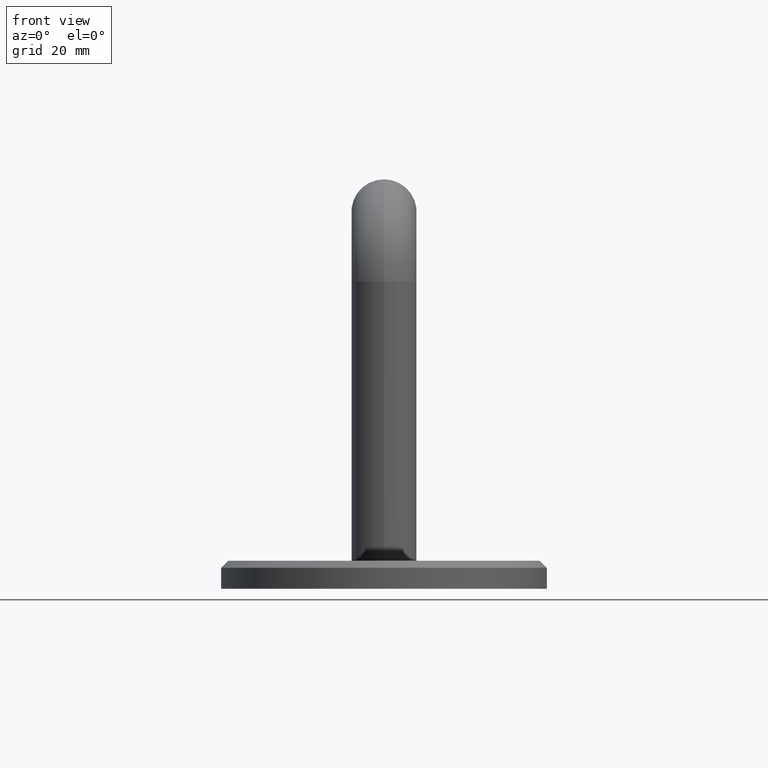
[diagram: clean part render]
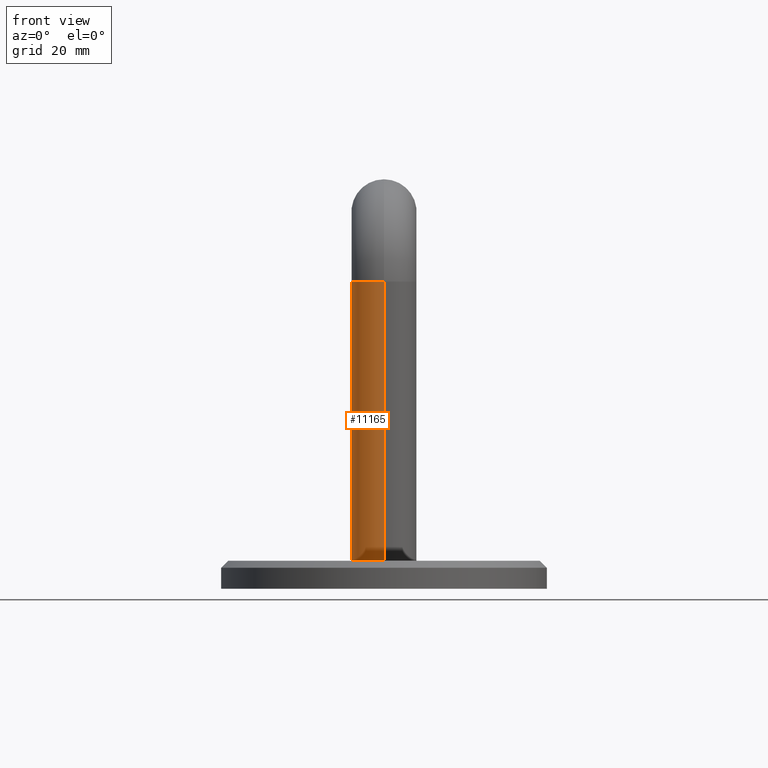
[diagram: same view with one face highlighted and labeled with its STEP entity id]
A machine part, front view. The second image highlights one B-rep face of the part: STEP entity #11165.
In plain terms, the highlighted cylindrical surface (edge-blend (fillet) strip) has radius 7 mm, axis along (-0, -0, 1).
Its self-contained STEP definition (entity closure, byte-faithful):
#845 = CARTESIAN_POINT ( 'NONE',  ( 0.000000000000000000, -1.387778780781445676E-14, -60.00000000000000000 ) ) ;
#1178 = DIRECTION ( 'NONE',  ( -0.000000000000000000, -2.312964634635742957E-16, -1.000000000000000000 ) ) ;
#1806 = CIRCLE ( 'NONE', #9055, 7.000000000000000888 ) ;
#1916 = VECTOR ( 'NONE', #15176, 1000.000000000000000 ) ;
#2008 = DIRECTION ( 'NONE',  ( 0.000000000000000000, 0.000000000000000000, 1.000000000000000000 ) ) ;
#2348 = ORIENTED_EDGE ( 'NONE', *, *, #6967, .T. ) ;
#2779 = CARTESIAN_POINT ( 'NONE',  ( 0.000000000000000000, 0.000000000000000000, 0.000000000000000000 ) ) ;
#3428 = FACE_OUTER_BOUND ( 'NONE', #10619, .T. ) ;
#3839 = DIRECTION ( 'NONE',  ( -0.000000000000000000, -2.312964634635742957E-16, -1.000000000000000000 ) ) ;
#4091 = LINE ( 'NONE', #13453, #4262 ) ;
#4262 = VECTOR ( 'NONE', #3839, 1000.000000000000000 ) ;
#5185 = CARTESIAN_POINT ( 'NONE',  ( 8.572527594031481078E-16, -7.000000000000014211, -60.00000000000000000 ) ) ;
#6125 = AXIS2_PLACEMENT_3D ( 'NONE', #845, #2008, #11695 ) ;
#6753 = CARTESIAN_POINT ( 'NONE',  ( 0.000000000000000000, 7.000000000000000888, -1.619075244245020415E-15 ) ) ;
#6967 = EDGE_CURVE ( 'NONE', #13866, #15360, #4091, .T. ) ;
#7110 = EDGE_CURVE ( 'NONE', #13866, #15341, #1806, .T. ) ;
#7179 = CYLINDRICAL_SURFACE ( 'NONE', #9239, 7.000000000000000888 ) ;
#8435 = CARTESIAN_POINT ( 'NONE',  ( 0.000000000000000000, 6.999999999999987566, -60.00000000000000000 ) ) ;
#8842 = CIRCLE ( 'NONE', #6125, 7.000000000000000888 ) ;
#8989 = CARTESIAN_POINT ( 'NONE',  ( 0.000000000000000000, 7.000000000000000000, 0.000000000000000000 ) ) ;
#9055 = AXIS2_PLACEMENT_3D ( 'NONE', #2779, #14729, #11209 ) ;
#9239 = AXIS2_PLACEMENT_3D ( 'NONE', #14290, #1178, #14344 ) ;
#10619 = EDGE_LOOP ( 'NONE', ( #10831, #2348, #12989, #10936 ) ) ;
#10798 = VERTEX_POINT ( 'NONE', #8435 ) ;
#10831 = ORIENTED_EDGE ( 'NONE', *, *, #7110, .F. ) ;
#10936 = ORIENTED_EDGE ( 'NONE', *, *, #11436, .F. ) ;
#11165 = ADVANCED_FACE ( 'NONE', ( #3428 ), #7179, .T. ) ;
#11209 = DIRECTION ( 'NONE',  ( 1.000000000000000000, 0.000000000000000000, 0.000000000000000000 ) ) ;
#11436 = EDGE_CURVE ( 'NONE', #15341, #10798, #11894, .T. ) ;
#11695 = DIRECTION ( 'NONE',  ( 1.000000000000000000, 0.000000000000000000, 0.000000000000000000 ) ) ;
#11864 = CARTESIAN_POINT ( 'NONE',  ( 8.572527594031474176E-16, -7.000000000000000888, 0.000000000000000000 ) ) ;
#11894 = LINE ( 'NONE', #6753, #1916 ) ;
#12989 = ORIENTED_EDGE ( 'NONE', *, *, #15146, .T. ) ;
#13453 = CARTESIAN_POINT ( 'NONE',  ( 8.572527594031474176E-16, -7.000000000000000888, 1.619075244245020415E-15 ) ) ;
#13866 = VERTEX_POINT ( 'NONE', #11864 ) ;
#14290 = CARTESIAN_POINT ( 'NONE',  ( 0.000000000000000000, 0.000000000000000000, 0.000000000000000000 ) ) ;
#14344 = DIRECTION ( 'NONE',  ( 0.000000000000000000, 1.000000000000000000, -2.312964634635742957E-16 ) ) ;
#14729 = DIRECTION ( 'NONE',  ( 0.000000000000000000, 0.000000000000000000, 1.000000000000000000 ) ) ;
#15146 = EDGE_CURVE ( 'NONE', #15360, #10798, #8842, .T. ) ;
#15176 = DIRECTION ( 'NONE',  ( -0.000000000000000000, -2.312964634635742957E-16, -1.000000000000000000 ) ) ;
#15341 = VERTEX_POINT ( 'NONE', #8989 ) ;
#15360 = VERTEX_POINT ( 'NONE', #5185 ) ;